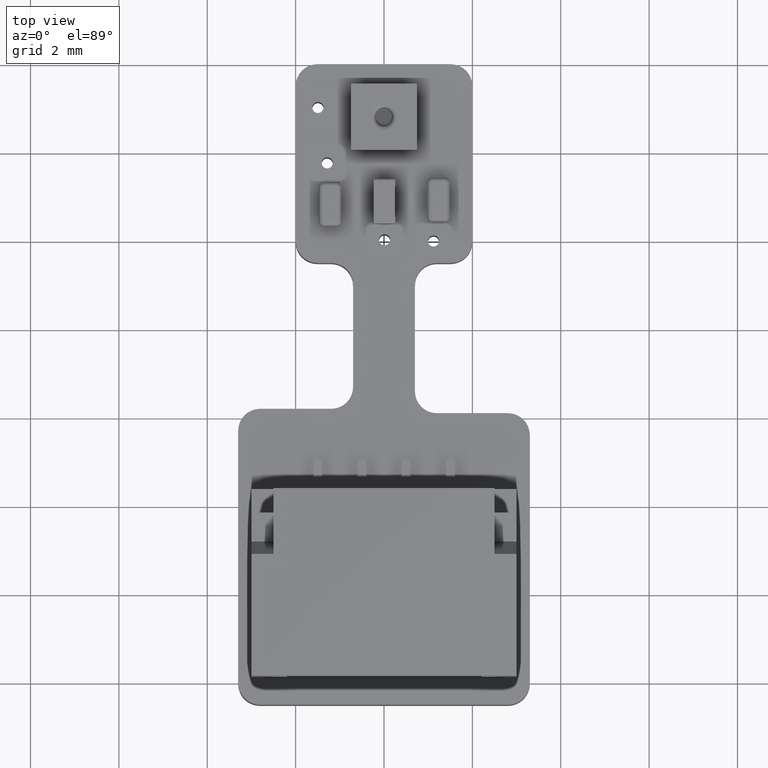
[diagram: clean part render]
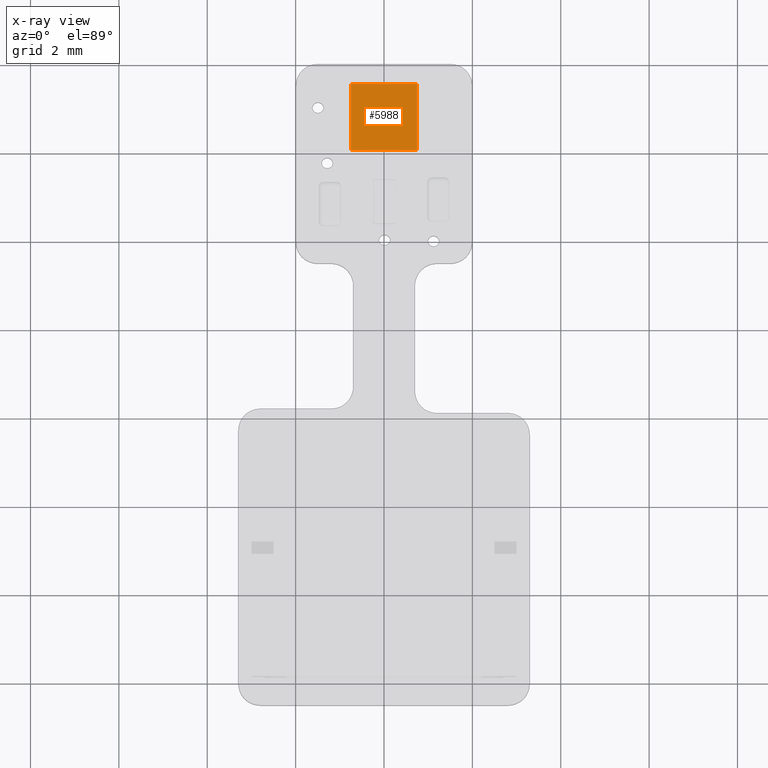
[diagram: x-ray — body ghosted, one internal face saturated and labeled with its STEP entity id]
A machine part, top view, then the same camera in x-ray: the body is ghosted and one INTERNAL B-rep face — a face not visible from any outside direction — is saturated and labeled: STEP entity #5988.
In plain terms, the highlighted planar face has unit normal (0, 0, -1).
Its self-contained STEP definition (entity closure, byte-faithful):
#5766 = EDGE_CURVE('',#5767,#5769,#5771,.T.);
#5767 = VERTEX_POINT('',#5768);
#5768 = CARTESIAN_POINT('',(-0.75,0.E+000,0.75));
#5769 = VERTEX_POINT('',#5770);
#5770 = CARTESIAN_POINT('',(0.75,0.E+000,0.75));
#5771 = LINE('',#5772,#5773);
#5772 = CARTESIAN_POINT('',(-0.75,0.E+000,0.75));
#5773 = VECTOR('',#5774,1.);
#5774 = DIRECTION('',(1.,0.E+000,-1.445602896647E-016));
#5840 = EDGE_CURVE('',#5841,#5843,#5845,.T.);
#5841 = VERTEX_POINT('',#5842);
#5842 = CARTESIAN_POINT('',(-0.75,0.E+000,-0.75));
#5843 = VERTEX_POINT('',#5844);
#5844 = CARTESIAN_POINT('',(0.75,0.E+000,-0.75));
#5845 = LINE('',#5846,#5847);
#5846 = CARTESIAN_POINT('',(-0.75,0.E+000,-0.75));
#5847 = VECTOR('',#5848,1.);
#5848 = DIRECTION('',(1.,0.E+000,-1.445602896647E-016));
#5948 = EDGE_CURVE('',#5841,#5767,#5949,.T.);
#5949 = LINE('',#5950,#5951);
#5950 = CARTESIAN_POINT('',(-0.75,0.E+000,-0.75));
#5951 = VECTOR('',#5952,1.);
#5952 = DIRECTION('',(1.445602896647E-016,0.E+000,1.));
#5970 = EDGE_CURVE('',#5843,#5769,#5971,.T.);
#5971 = LINE('',#5972,#5973);
#5972 = CARTESIAN_POINT('',(0.75,0.E+000,-0.75));
#5973 = VECTOR('',#5974,1.);
#5974 = DIRECTION('',(0.E+000,0.E+000,1.));
#5988 = ADVANCED_FACE('',(#5989),#5995,.T.);
#5989 = FACE_BOUND('',#5990,.T.);
#5990 = EDGE_LOOP('',(#5991,#5992,#5993,#5994));
#5991 = ORIENTED_EDGE('',*,*,#5840,.T.);
#5992 = ORIENTED_EDGE('',*,*,#5970,.T.);
#5993 = ORIENTED_EDGE('',*,*,#5766,.F.);
#5994 = ORIENTED_EDGE('',*,*,#5948,.F.);
#5995 = PLANE('',#5996);
#5996 = AXIS2_PLACEMENT_3D('',#5997,#5998,#5999);
#5997 = CARTESIAN_POINT('',(0.E+000,0.E+000,0.E+000));
#5998 = DIRECTION('',(0.E+000,-1.,0.E+000));
#5999 = DIRECTION('',(0.E+000,-0.E+000,-1.));